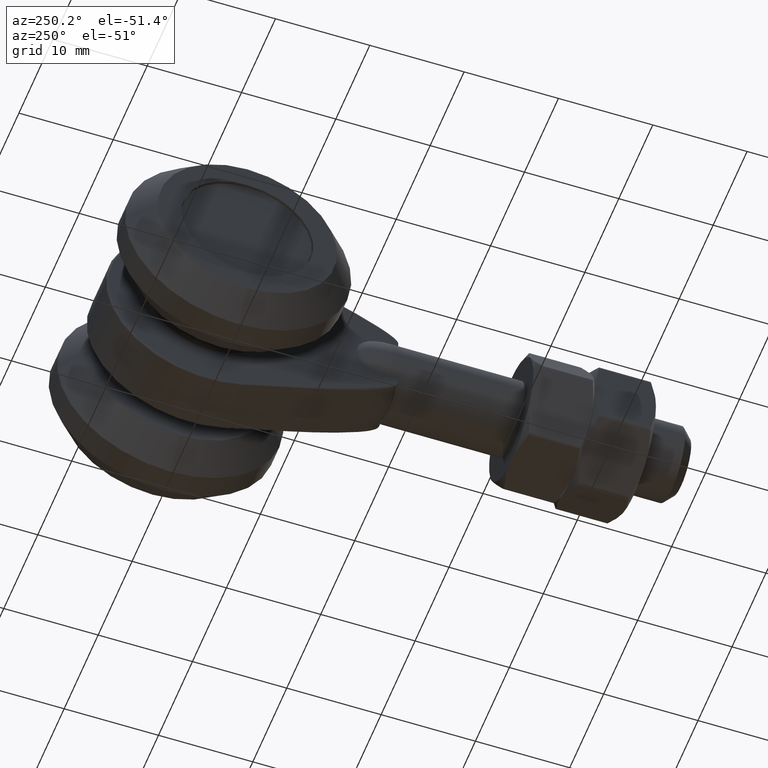
[diagram: clean part render]
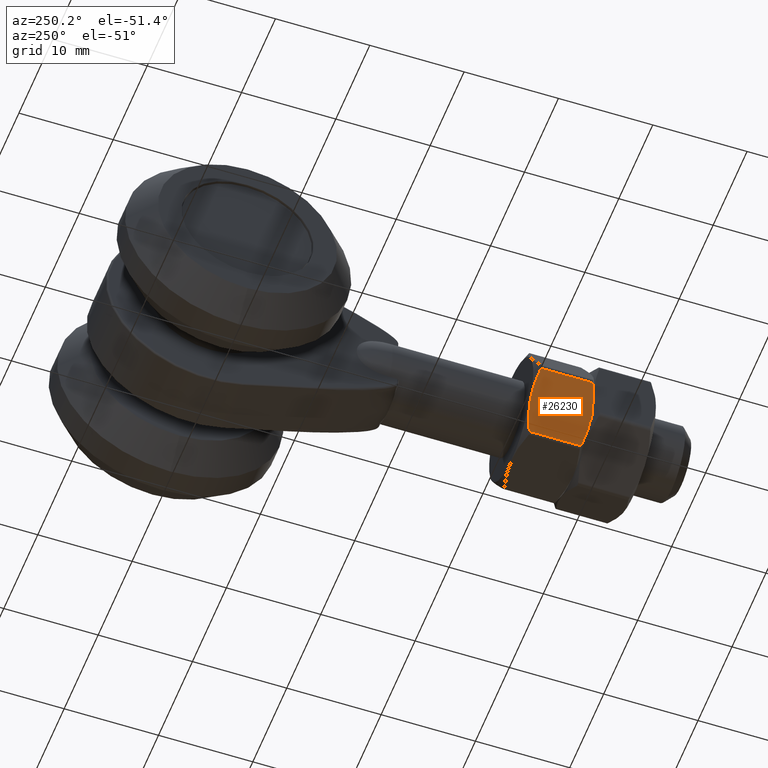
[diagram: same view with one face highlighted and labeled with its STEP entity id]
A machine part, auxiliary view. The second image highlights one B-rep face of the part: STEP entity #26230.
In plain terms, the highlighted planar face has unit normal (0.866, 0, 0.5).
Its self-contained STEP definition (entity closure, byte-faithful):
#175 = CARTESIAN_POINT ( 'NONE',  ( -5.629165124598849879, 3.250000000000000000, -3.249999999999999112 ) ) ;
#205 = CARTESIAN_POINT ( 'NONE',  ( -5.629165124598849879, -3.250000000000000000, -3.249999999999999112 ) ) ;
#526 = FACE_OUTER_BOUND ( 'NONE', #23113, .T. ) ;
#2238 = CARTESIAN_POINT ( 'NONE',  ( -7.361215932168764908, 2.750326475674318427, -0.2499999999982063514 ) ) ;
#2277 = CARTESIAN_POINT ( 'NONE',  ( -5.629165124598849879, 3.250000000000000000, -3.249999999999999112 ) ) ;
#2525 = EDGE_CURVE ( 'NONE', #12334, #27713, #15817, .T. ) ;
#2576 = VERTEX_POINT ( 'NONE', #22086 ) ;
#2678 = CARTESIAN_POINT ( 'NONE',  ( -5.629165124598849879, 3.250000000000000000, -3.249999999999999112 ) ) ;
#2978 = EDGE_CURVE ( 'NONE', #14072, #12334, #24117, .T. ) ;
#3416 = CARTESIAN_POINT ( 'NONE',  ( -3.752776749732568806, 3.250000000000000000, -6.500000000000000000 ) ) ;
#3494 = CARTESIAN_POINT ( 'NONE',  ( -3.897114317028939290, -2.750326475674318427, -6.250000000001794120 ) ) ;
#3680 = LINE ( 'NONE', #27873, #25883 ) ;
#4022 = EDGE_CURVE ( 'NONE', #2576, #20421, #5621, .T. ) ;
#4157 = CARTESIAN_POINT ( 'NONE',  ( -4.465291406935471663, 3.029614908576547361, -5.265888412587048428 ) ) ;
#4326 = CARTESIAN_POINT ( 'NONE',  ( -6.218478719796786791, 3.250000000000002220, -2.229278911526099805 ) ) ;
#4414 = CARTESIAN_POINT ( 'NONE',  ( -6.794026904718142745, 3.058352876056137593, -1.232400213038263637 ) ) ;
#4754 = VECTOR ( 'NONE', #7454, 1000.000000000000000 ) ;
#5386 = CARTESIAN_POINT ( 'NONE',  ( -3.897114317029974906, 3.250000000000000000, -6.250000000000000000 ) ) ;
#5604 = ORIENTED_EDGE ( 'NONE', *, *, #2978, .T. ) ;
#5621 = B_SPLINE_CURVE_WITH_KNOTS ( 'NONE', 3,
 ( #205, #8763, #10791, #25967, #13058, #17386, #10515, #19557 ),
 .UNSPECIFIED., .F., .F.,
 ( 4, 2, 2, 4 ),
 ( 0.003797433802554438936, 0.004668978453557806607, 0.005540523104561175145, 0.007283612406567910487 ),
 .UNSPECIFIED. ) ;
#6098 = ORIENTED_EDGE ( 'NONE', *, *, #4022, .T. ) ;
#7454 = DIRECTION ( 'NONE',  ( 0.000000000000000000, -1.000000000000000000, 0.000000000000000000 ) ) ;
#7630 = CARTESIAN_POINT ( 'NONE',  ( -5.629165124598849879, -3.250000000000000000, -3.249999999999999112 ) ) ;
#7830 = PLANE ( 'NONE',  #17064 ) ;
#8763 = CARTESIAN_POINT ( 'NONE',  ( -5.775913707290536436, -3.250000000000002665, -2.995823998839279856 ) ) ;
#9465 = ORIENTED_EDGE ( 'NONE', *, *, #24261, .T. ) ;
#10135 = ORIENTED_EDGE ( 'NONE', *, *, #2525, .T. ) ;
#10515 = CARTESIAN_POINT ( 'NONE',  ( -7.078287489049793102, -2.903977949313088835, -0.7400464383866308671 ) ) ;
#10791 = CARTESIAN_POINT ( 'NONE',  ( -5.923365020047800300, -3.238358288205309687, -2.740430833500968610 ) ) ;
#10798 = CARTESIAN_POINT ( 'NONE',  ( -5.482416541907165985, 3.250000000000001776, -3.504176001160721921 ) ) ;
#11896 = CARTESIAN_POINT ( 'NONE',  ( -7.361215932167729292, -2.750326475674880644, -0.2500000000000007772 ) ) ;
#12230 = VERTEX_POINT ( 'NONE', #13181 ) ;
#12334 = VERTEX_POINT ( 'NONE', #2678 ) ;
#13058 = CARTESIAN_POINT ( 'NONE',  ( -6.360320613116884125, -3.159567907072295956, -1.983601545653928877 ) ) ;
#13063 = CARTESIAN_POINT ( 'NONE',  ( -5.334965229149903898, 3.238358288205309687, -3.759569166499033166 ) ) ;
#13181 = CARTESIAN_POINT ( 'NONE',  ( -3.897114317028939290, -2.750326475674318427, -6.250000000001794120 ) ) ;
#13344 = CARTESIAN_POINT ( 'NONE',  ( -7.361215932168764908, 2.750326475674318427, -0.2499999999982063514 ) ) ;
#14072 = VERTEX_POINT ( 'NONE', #13344 ) ;
#14366 = DIRECTION ( 'NONE',  ( 0.8660254037844387076, -0.000000000000000000, 0.4999999999999999445 ) ) ;
#15211 = B_SPLINE_CURVE_WITH_KNOTS ( 'NONE', 3,
 ( #3494, #22532, #18320, #7630 ),
 .UNSPECIFIED., .F., .F.,
 ( 4, 4 ),
 ( 0.0002974810109325090146, 0.003797433802554438936 ),
 .UNSPECIFIED. ) ;
#15221 = CARTESIAN_POINT ( 'NONE',  ( -4.180042760147912873, 2.903977949313088835, -5.759953561613372131 ) ) ;
#15817 = B_SPLINE_CURVE_WITH_KNOTS ( 'NONE', 3,
 ( #2277, #10798, #13063, #17018, #21344, #4157, #15221, #23515 ),
 .UNSPECIFIED., .F., .F.,
 ( 4, 2, 2, 4 ),
 ( 0.003797433802554441538, 0.004668978453557810077, 0.005540523104561177747, 0.007283612406567914824 ),
 .UNSPECIFIED. ) ;
#16470 = ORIENTED_EDGE ( 'NONE', *, *, #17712, .T. ) ;
#17018 = CARTESIAN_POINT ( 'NONE',  ( -5.043057695669495466, 3.193121803873833375, -4.265167845599206586 ) ) ;
#17064 = AXIS2_PLACEMENT_3D ( 'NONE', #3416, #14366, #24841 ) ;
#17386 = CARTESIAN_POINT ( 'NONE',  ( -6.793038842262232535, -3.029614908576547805, -1.234111587412952904 ) ) ;
#17526 = LINE ( 'NONE', #5386, #4754 ) ;
#17712 = EDGE_CURVE ( 'NONE', #27713, #12230, #17526, .T. ) ;
#18320 = CARTESIAN_POINT ( 'NONE',  ( -5.039851529400916519, -3.250000000000002220, -4.270721088473902860 ) ) ;
#19027 = DIRECTION ( 'NONE',  ( -0.000000000000000000, 1.000000000000000000, -0.000000000000000000 ) ) ;
#19557 = CARTESIAN_POINT ( 'NONE',  ( -7.361215932167729292, -2.750326475674880644, -0.2500000000000007772 ) ) ;
#20287 = ORIENTED_EDGE ( 'NONE', *, *, #21657, .T. ) ;
#20421 = VERTEX_POINT ( 'NONE', #11896 ) ;
#21344 = CARTESIAN_POINT ( 'NONE',  ( -4.898009636080820073, 3.159567907072294179, -4.516398454346074232 ) ) ;
#21657 = EDGE_CURVE ( 'NONE', #20421, #14072, #3680, .T. ) ;
#21876 = CARTESIAN_POINT ( 'NONE',  ( -3.897114317029974906, 2.750326475674880644, -6.250000000000000000 ) ) ;
#22086 = CARTESIAN_POINT ( 'NONE',  ( -5.629165124598849879, -3.250000000000000000, -3.249999999999999112 ) ) ;
#22532 = CARTESIAN_POINT ( 'NONE',  ( -4.464303344479562341, -3.058352876056137593, -5.267599786961736363 ) ) ;
#23113 = EDGE_LOOP ( 'NONE', ( #6098, #20287, #5604, #10135, #16470, #9465 ) ) ;
#23515 = CARTESIAN_POINT ( 'NONE',  ( -3.897114317029974906, 2.750326475674880644, -6.250000000000000000 ) ) ;
#24117 = B_SPLINE_CURVE_WITH_KNOTS ( 'NONE', 3,
 ( #2238, #4414, #4326, #175 ),
 .UNSPECIFIED., .F., .F.,
 ( 4, 4 ),
 ( 0.0002974810109325105325, 0.003797433802554441538 ),
 .UNSPECIFIED. ) ;
#24261 = EDGE_CURVE ( 'NONE', #12230, #2576, #15211, .T. ) ;
#24841 = DIRECTION ( 'NONE',  ( 0.4999999999999998890, 0.000000000000000000, -0.8660254037844385966 ) ) ;
#25883 = VECTOR ( 'NONE', #19027, 1000.000000000000000 ) ;
#25967 = CARTESIAN_POINT ( 'NONE',  ( -6.215272553528206068, -3.193121803873832931, -2.234832154400795190 ) ) ;
#26230 = ADVANCED_FACE ( 'NONE', ( #526 ), #7830, .F. ) ;
#27713 = VERTEX_POINT ( 'NONE', #21876 ) ;
#27873 = CARTESIAN_POINT ( 'NONE',  ( -7.361215932167729292, 3.250000000000000000, -0.2499999999999993616 ) ) ;